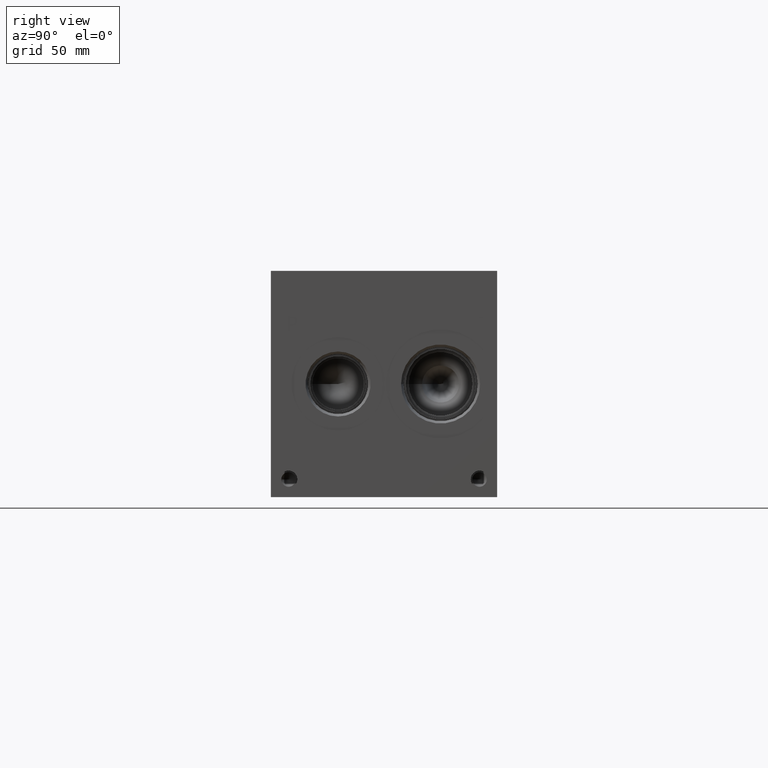
[diagram: clean part render]
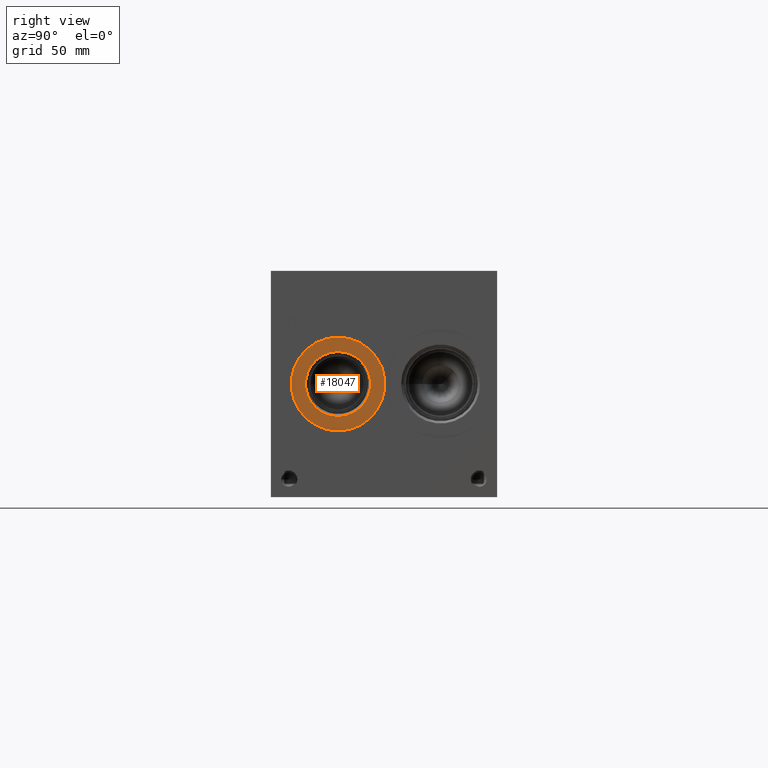
[diagram: same view with one face highlighted and labeled with its STEP entity id]
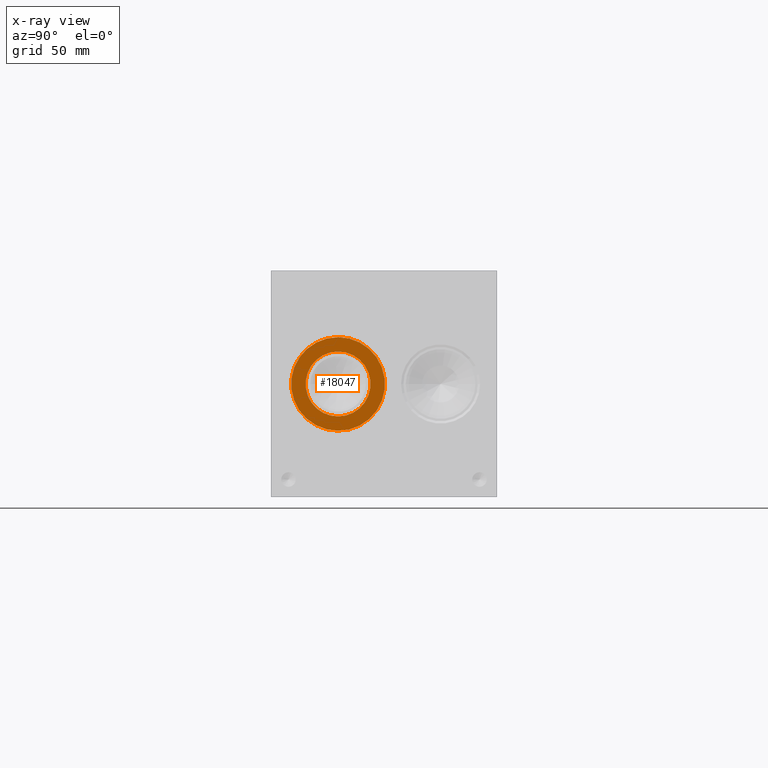
[diagram: x-ray of the same camera — body ghosted, the highlighted face saturated]
A machine part, right view. The second image highlights one B-rep face of the part: STEP entity #18047.
The next image is the same camera in x-ray: the body ghosted, the highlighted face saturated — about 0% of this face is hidden behind the body in this view.
In plain terms, the highlighted planar face has unit normal (-1, 0, 0).
Its self-contained STEP definition (entity closure, byte-faithful):
#1010=CIRCLE('',#19317,21.0185);
#1011=CIRCLE('',#19318,21.0185);
#1012=CIRCLE('',#19320,14.5923);
#1013=CIRCLE('',#19321,14.5923);
#1604=FACE_BOUND('',#3631,.T.);
#2560=FACE_OUTER_BOUND('',#3630,.T.);
#3630=EDGE_LOOP('',(#15793,#15794));
#3631=EDGE_LOOP('',(#15795,#15796));
#8477=VERTEX_POINT('',#31287);
#8478=VERTEX_POINT('',#31289);
#8479=VERTEX_POINT('',#31293);
#8480=VERTEX_POINT('',#31294);
#10969=EDGE_CURVE('',#8477,#8478,#1010,.T.);
#10970=EDGE_CURVE('',#8478,#8477,#1011,.T.);
#10971=EDGE_CURVE('',#8479,#8480,#1012,.T.);
#10972=EDGE_CURVE('',#8480,#8479,#1013,.T.);
#15793=ORIENTED_EDGE('',*,*,#10970,.F.);
#15794=ORIENTED_EDGE('',*,*,#10969,.F.);
#15795=ORIENTED_EDGE('',*,*,#10971,.T.);
#15796=ORIENTED_EDGE('',*,*,#10972,.T.);
#16540=PLANE('',#19319);
#18047=ADVANCED_FACE('',(#2560,#1604),#16540,.F.);
#19317=AXIS2_PLACEMENT_3D('',#31290,#23346,#23347);
#19318=AXIS2_PLACEMENT_3D('',#31291,#23348,#23349);
#19319=AXIS2_PLACEMENT_3D('',#31292,#23350,#23351);
#19320=AXIS2_PLACEMENT_3D('',#31295,#23352,#23353);
#19321=AXIS2_PLACEMENT_3D('',#31296,#23354,#23355);
#23346=DIRECTION('center_axis',(-1.,0.,0.));
#23347=DIRECTION('ref_axis',(0.,0.,1.));
#23348=DIRECTION('center_axis',(-1.,0.,0.));
#23349=DIRECTION('ref_axis',(0.,0.,1.));
#23350=DIRECTION('center_axis',(-1.,0.,0.));
#23351=DIRECTION('ref_axis',(0.,0.,1.));
#23352=DIRECTION('center_axis',(-1.,0.,0.));
#23353=DIRECTION('ref_axis',(0.,0.,1.));
#23354=DIRECTION('center_axis',(-1.,0.,0.));
#23355=DIRECTION('ref_axis',(0.,0.,1.));
#31287=CARTESIAN_POINT('',(294.4876,30.1752,71.8185));
#31289=CARTESIAN_POINT('',(294.4876,30.1752,29.7815));
#31290=CARTESIAN_POINT('Origin',(294.4876,30.1752,50.8));
#31291=CARTESIAN_POINT('Origin',(294.4876,30.1752,50.8));
#31292=CARTESIAN_POINT('Origin',(294.4876,30.1752,36.2077));
#31293=CARTESIAN_POINT('',(294.4876,30.1752,36.2077));
#31294=CARTESIAN_POINT('',(294.4876,30.1752,65.3923));
#31295=CARTESIAN_POINT('Origin',(294.4876,30.1752,50.8));
#31296=CARTESIAN_POINT('Origin',(294.4876,30.1752,50.8));